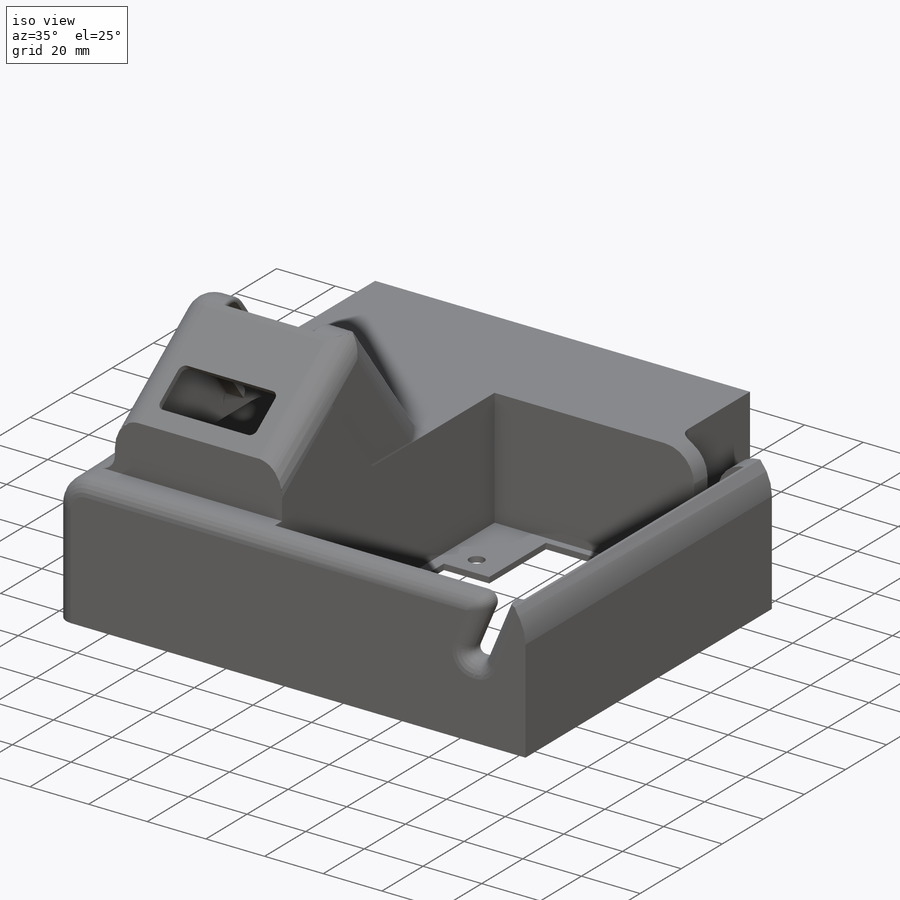
[diagram: iso view]
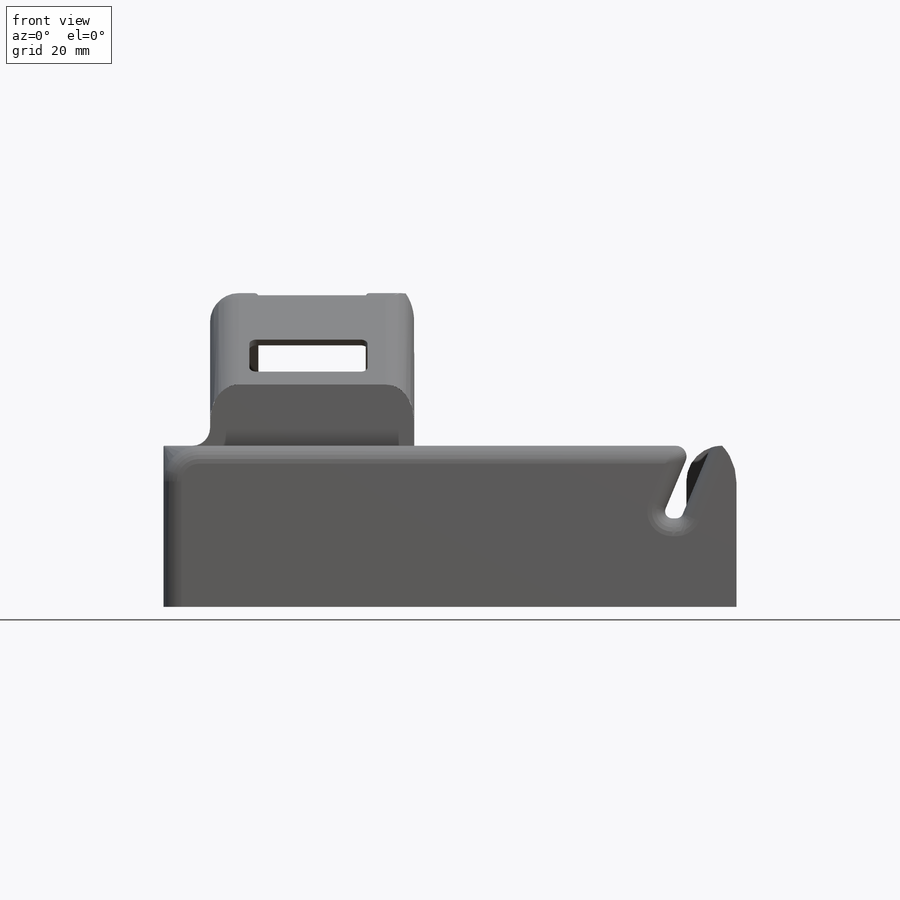
[diagram: front view]
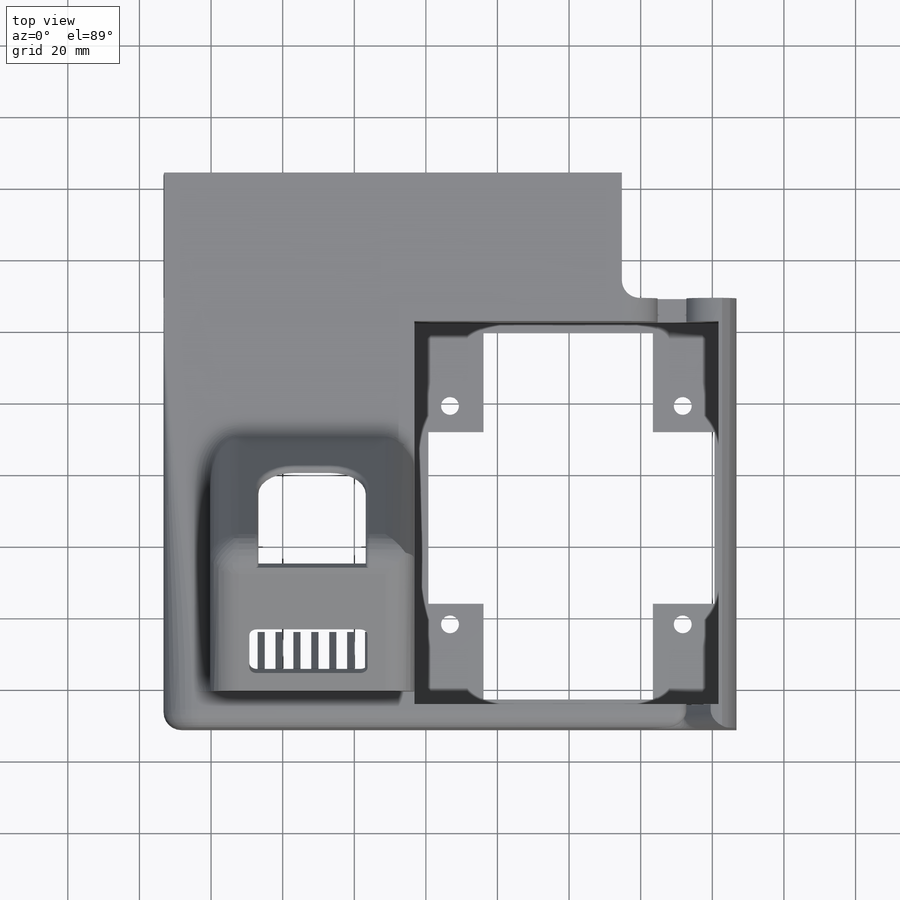
[diagram: top view]
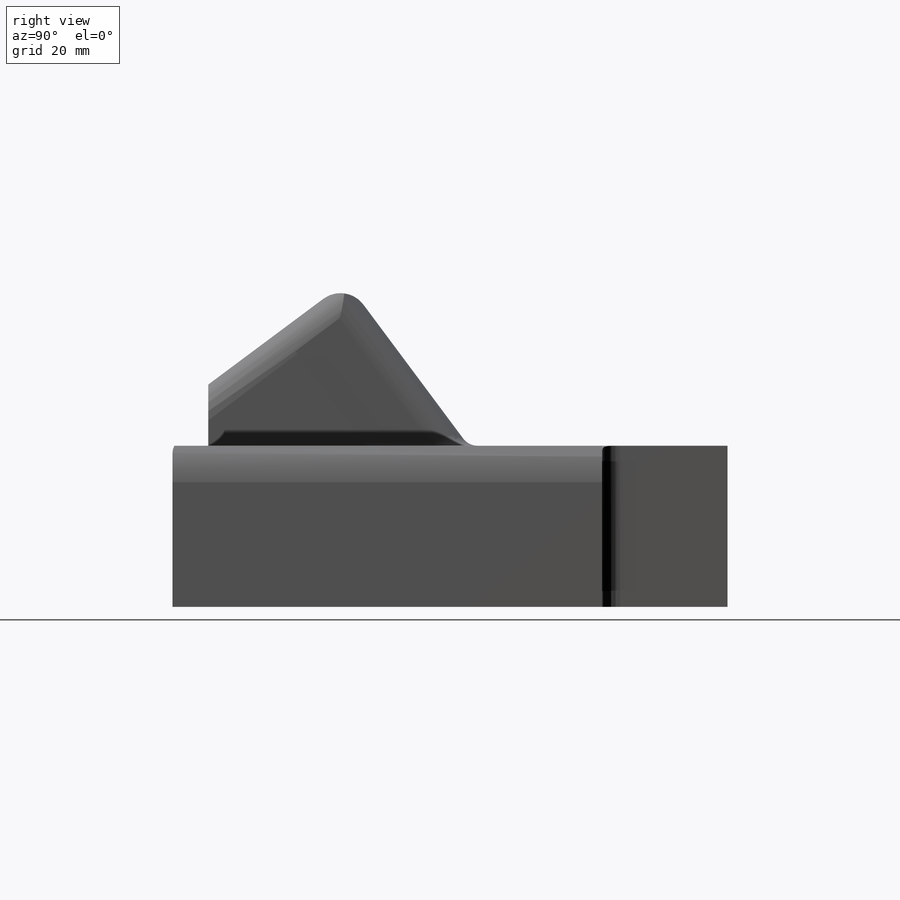
[diagram: right view]
SOLIDWORKS PART (.sldprt)
format: sldprt  version: not decoded by parser v0  size: 1,144,832 bytes
history: native  units: mm
features: sketch x21, cut_extrude x12, fillet x10, extrude x8, pattern_linear x4, plane x2, shell x2, material x1 (+13 scaffold rows collapsed)
feature tree (73):
  scaffold x13  (default folders/planes/origin — collapsed)
  material  "Material <not specified>"
  sketch  "Sketch1"  dims[D1=160.0mm D2=120.0mm]
  extrude  "Boss-Extrude2"  Depth=45mm
  sketch  "Sketch5"  dims[D1=85.0mm D2=107.0mm D3=5.0mm]
  cut_extrude  "Cut-Extrude1"  Depth=40mm
  sketch  "Sketch6"  dims[D1=9.0mm D2=8.0mm]
  cut_extrude  "Cut-Extrude2"  Depth=22mm
  sketch  "Sketch7"  dims[c1.D5=2.0mm c1.D1=2.0mm c1.D2=10.0mm c1.D3=5.0mm c1.D4=22.0mm c2.D5=22.0mm c2.D1=2.0mm c2.D2=10.0mm]
  cut_extrude  "Cut-Extrude3"  Depth=22mm
  fillet  "Fillet1"  Radius=10mm
  fillet  "Fillet2"  Radius=3mm
  sketch  "Sketch8"  dims[D1=5.0mm]
  fillet  "Fillet4"  Radius=15mm
  sketch  "Sketch9"  dims[D1=10.0mm D2=57.0mm D3=44.0mm]
  extrude  "Boss-Extrude3"  Depth=41mm
  sketch  "Sketch10"  dims[c1.D4=4.0mm c1.D1=40.0mm c1.D2=26.0mm c1.D3=~32.073725mm c2.D3=90.0deg]
  cut_extrude  "Cut-Extrude5"  Depth=60mm
  plane  "Plane1"  Offset=28mm
  sketch  "Sketch15"
  extrude  "Boss-Extrude5"  Depth=23mm
  fillet  "Fillet8"  Radius=8mm
  sketch  "Sketch18"  dims[D4=10.0mm D1=40.0mm D2=0.0mm D3=30.0mm]
  cut_extrude  "Cut-Extrude7"  Depth=6mm
  plane  "Plane2"  Offset=2mm
  shell  "Shell2"  Thickness=2mm
  sketch  "Sketch21"  dims[D3=4.0mm D1=2.0mm D2=2.0mm]
  cut_extrude  "Cut-Extrude8"  Depth=8mm
  sketch  "Sketch22"
  cut_extrude  "Cut-Extrude9"  Depth=6mm
  sketch  "Sketch23"
  cut_extrude  "Cut-Extrude10"  Depth=6mm
  sketch  "Sketch24"  dims[D4=2.0mm D1=15.0mm D2=33.0mm D3=5.0mm]
  cut_extrude  "Cut-Extrude11"  Depth=6mm
  sketch  "Sketch25"  dims[c1.D1=~20.466836mm c2.D1=~27.519559deg c2.D2=~9.445846mm c3.D2=90.0deg c3.D1=~3.945954mm c4.D1=90.0deg c4.D2=~16.836702mm c5.D2=36.5deg]
  extrude  "Boss-Extrude6"  Depth=2mm
  pattern_linear  "LPattern1"  Count1=6 Count2=5 Spacing1=5mm Spacing2=5mm
  sketch  "Sketch27"  dims[D1=2.0mm D2=30.0mm]
  extrude  "Boss-Extrude7"  Depth=7.5mm
  sketch  "Sketch28"  dims[D1=2.0mm D2=30.0mm]
  extrude  "Boss-Extrude8"  Depth=7.5mm
  pattern_linear  "LPattern2"  Count1=2 Count2=1 Spacing1=5mm Spacing2=5mm
  pattern_linear  "LPattern3"  Count1=2 Count2=1 Spacing1=5mm Spacing2=5mm
  fillet  "Fillet9"  Radius=2mm
  fillet  "Fillet10"  Radius=2mm
  fillet  "Fillet11"  Radius=1mm
  sketch  "Sketch29"
  extrude  "Boss-Extrude9"  Depth=35mm
  shell  "Shell3"  Thickness=2mm
  fillet  "Fillet12"  Radius=5mm
  sketch  "Sketch30"  dims[D1=10.0mm D2=2.0mm]
  extrude  "Boss-Extrude10"  Depth=35mm
  pattern_linear  "LPattern4"  Count1=4 Count2=1 Spacing1=27mm Spacing2=10mm
  sketch  "Sketch31"  dims[c1.D3=5.0mm c1.D1=65.0mm c1.D2=65.0mm c2.D3=61.0mm c2.D4=61.0mm c2.D1=65.0mm c2.D2=61.0mm]
  cut_extrude  "Cut-Extrude12"  Depth=35mm
  sketch  "Sketch32"
  cut_extrude  "Cut-Extrude13"  Depth=35mm
  sketch  "Sketch33"
  cut_extrude  "Cut-Extrude14"  Depth=35mm
  fillet  "Fillet13"  Radius=5mm
  fillet  "Fillet14"  Radius=5mm
decode coverage: 51 of 57 modeling features carry decoded parameters
note: ~ marks probable driven/reference dimensions
note: suppression state not decoded; provenance and decode notes live in map.json
